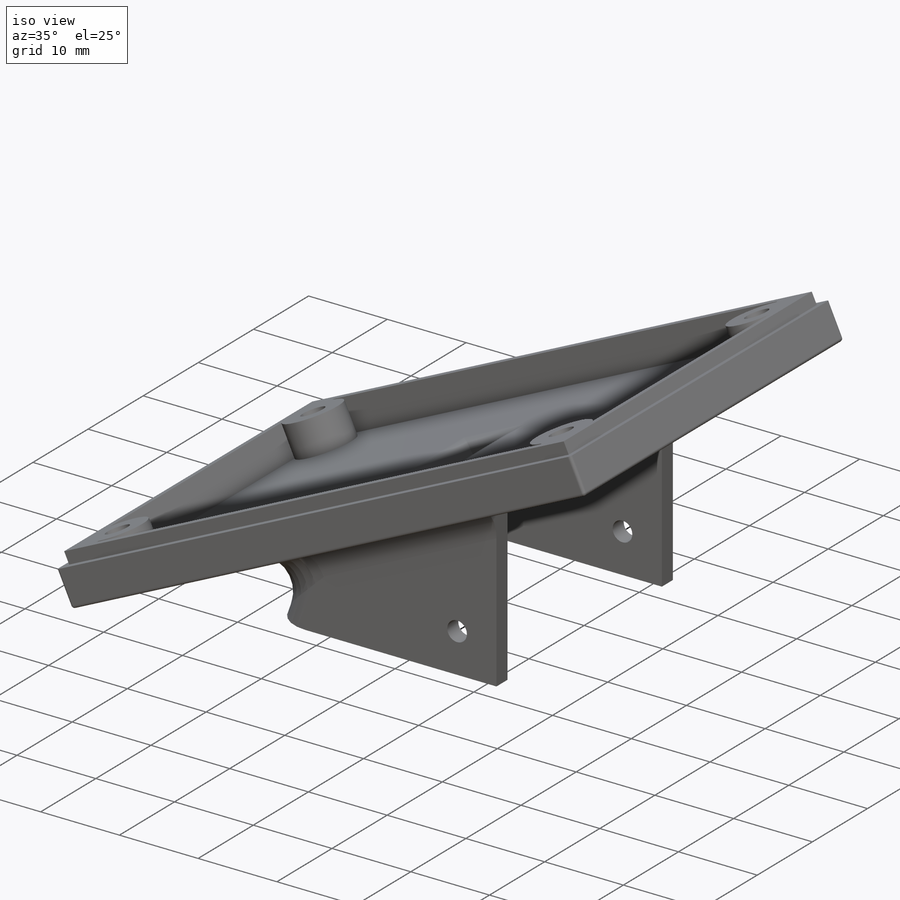
[diagram: iso view]
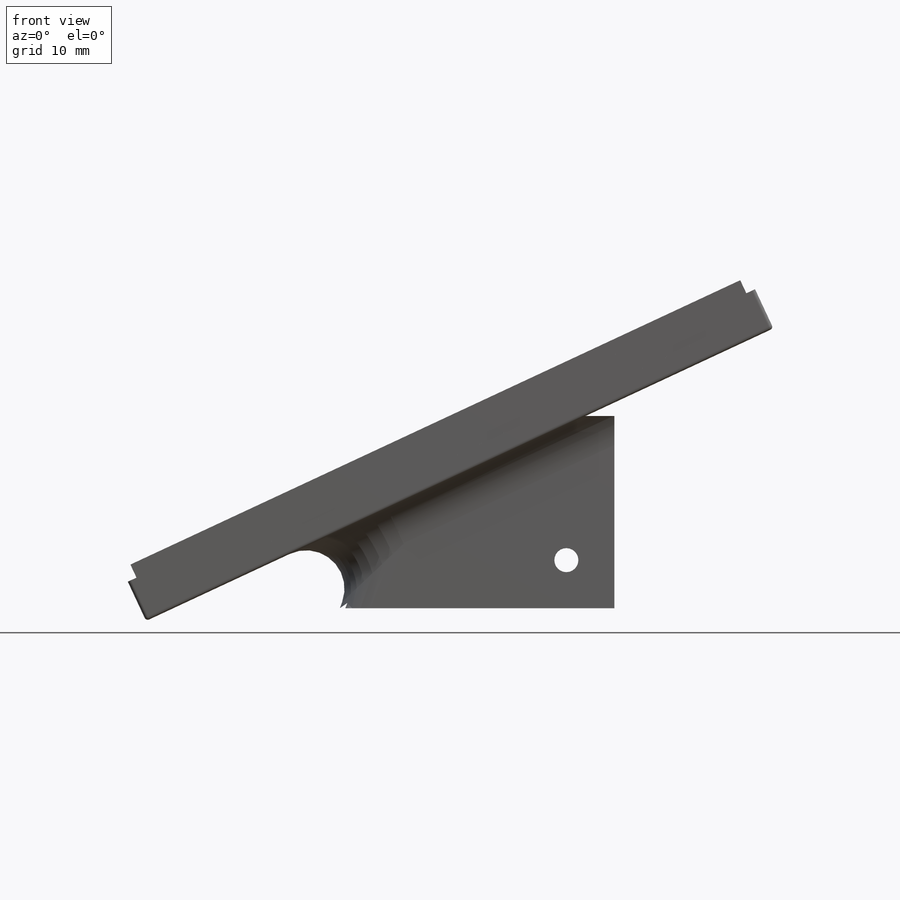
[diagram: front view]
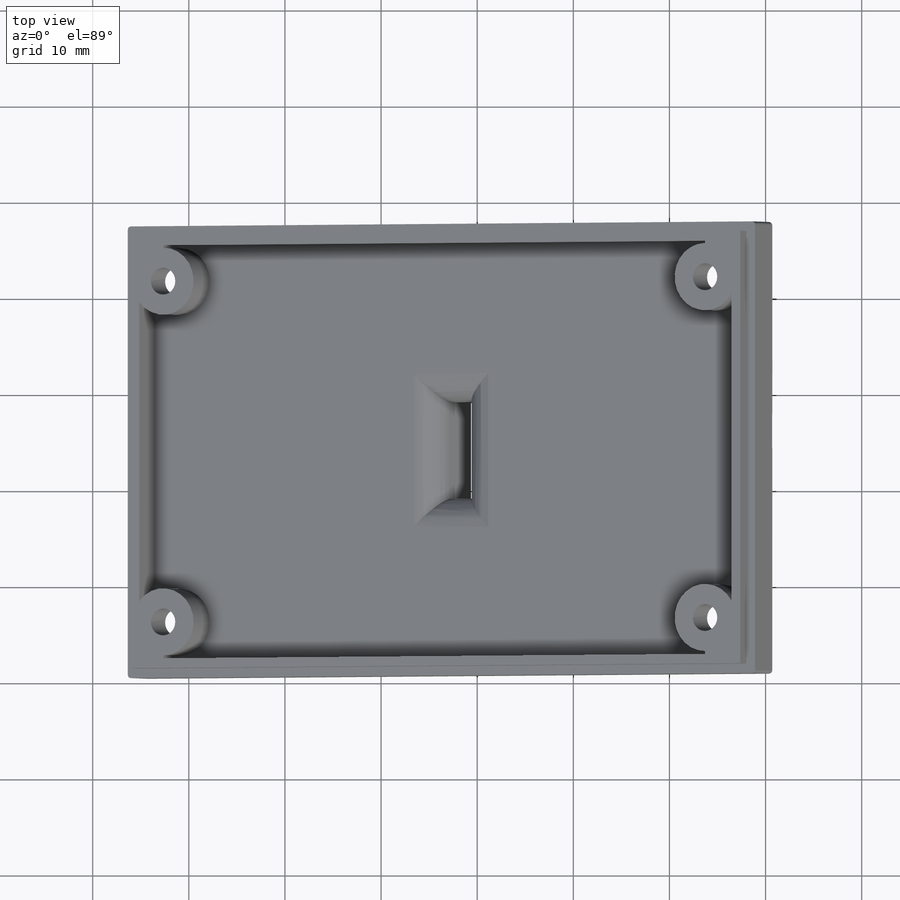
[diagram: top view]
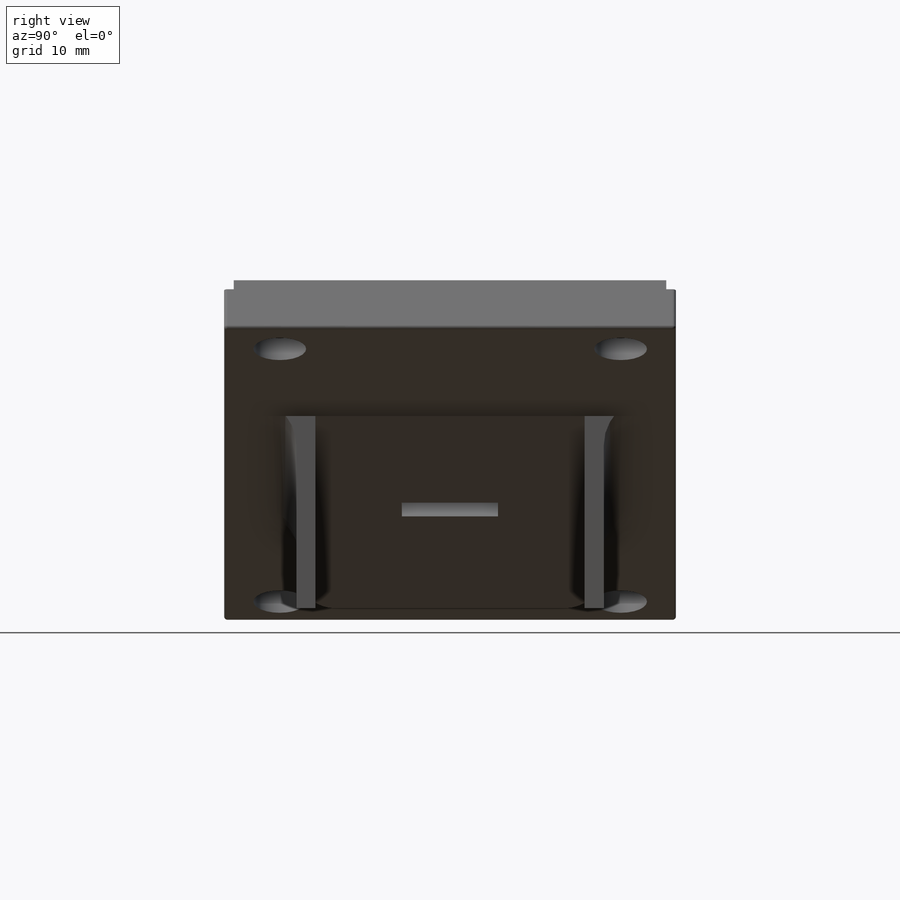
[diagram: right view]
SOLIDWORKS PART (.sldprt)
format: sldprt  version: not decoded by parser v0  size: 509,952 bytes
history: native  units: mm
features: sketch x14, cut_extrude x8, extrude x6, fillet x4, material x1 (+12 scaffold rows collapsed)
feature tree (45):
  scaffold x12  (default folders/planes/origin — collapsed)
  material  "ABS"
  sketch  "Sketch1"  dims[D1=28.56mm D2=20.0mm]
  extrude  "Boss-Extrude1"  Depth=2mm
  sketch  "Sketch2"  dims[c1.D1=30.0mm c2.D1=35.0deg c2.D2=0.0mm c2.D3=~1.532026mm]
  extrude  "Boss-Extrude2"  Depth=28mm
  sketch  "Sketch3"  dims[D1=20.0mm D2=28.56mm]
  extrude  "Boss-Extrude3"  Depth=2mm
  sketch  "Sketch4"  dims[D3=2.5mm D1=5.0mm D2=5.0mm]
  cut_extrude  "Cut-Extrude1"  [1 undecoded]
  sketch  "Sketch5"  dims[c1.D1=3.0mm c1.D2=30.0mm c2.D2=25.0deg]
  cut_extrude  "Cut-Extrude2"  [1 undecoded]
  sketch  "Sketch9"  dims[c1.D1=~6.824667mm c2.D1=20.0deg]
  cut_extrude  "Cut-Extrude5"  [1 undecoded]
  sketch  "Sketch10"  dims[D1=16.0mm 47mm=47.0mm D2=72.0mm]
  extrude  "Boss-Extrude4"  Depth=6mm
  sketch  "Sketch11"  dims[D1=2.0mm D2=2.0mm D3=2.0mm D4=2.0mm]
  cut_extrude  "Cut-Extrude6"  Depth=4mm
  sketch  "Sketch14"  dims[D1=1.0mm D2=1.0mm D3=1.0mm D4=1.0mm]
  cut_extrude  "Cut-Extrude7"  Depth=1.5mm
  sketch  "Sketch15"  dims[3,75mm=5.75mm D2=4.75mm D3=2.0 D4=2.0]
  extrude  "Boss-Extrude5"  Depth=4mm
  sketch  "Sketch16"  dims[D1=0.0mm]
  extrude  "Boss-Extrude6"  Depth=4mm
  sketch  "Sketch17"  dims[c1.D1=3.5mm c1.D2=3.5mm c1.D3=2.8mm c2.D1=0.0mm c2.D2=0.0mm c2.D4=2.0 c2.D5=2.0]
  cut_extrude  "Cut-Extrude8"  [1 undecoded]
  sketch  "Sketch19"  dims[c1.D1=2.8mm c1.D2=5.5mm c2.D1=0.0mm c2.D3=2.0 c2.D4=2.0]
  cut_extrude  "Cut-Extrude9"  Depth=2.5mm
  fillet  "Fillet1"  Radius=0.35mm
  fillet  "Fillet2"  Radius=4mm
  fillet  "Fillet5"  Radius=4mm
  sketch  "Sketch20"  dims[D1=10.0mm 2.5mm=2.5mm D2=0.0mm D3=0.0mm]
  cut_extrude  "Cut-Extrude10"  [1 undecoded]
  fillet  "Fillet6"  Radius=3mm
decode coverage: 27 of 32 modeling features carry decoded parameters
note: ~ marks probable driven/reference dimensions
note: 5 parameter values undecoded
summary: no parameter record found for 5 features
note: suppression state not decoded; provenance and decode notes live in map.json
